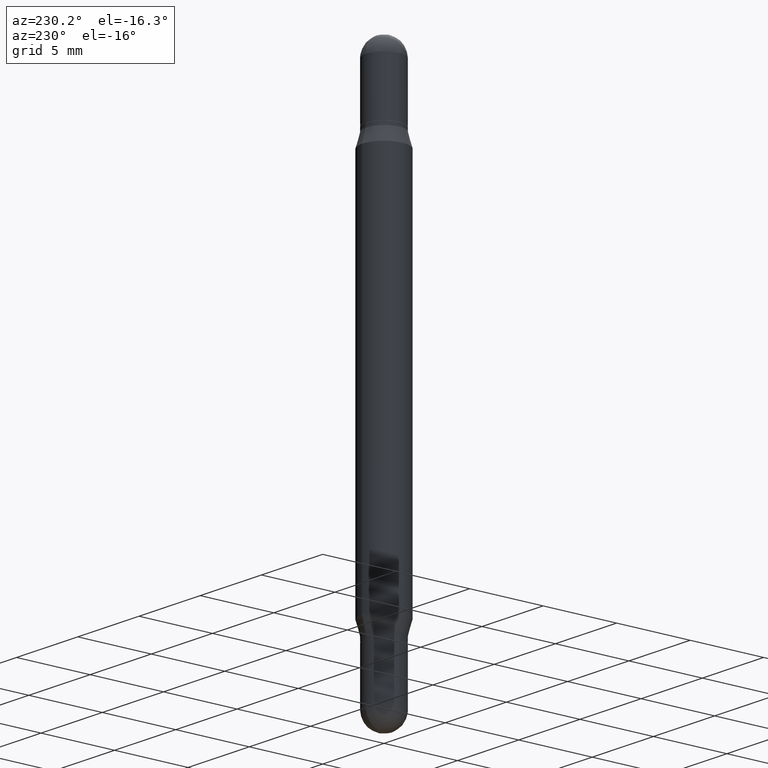
[diagram: clean part render]
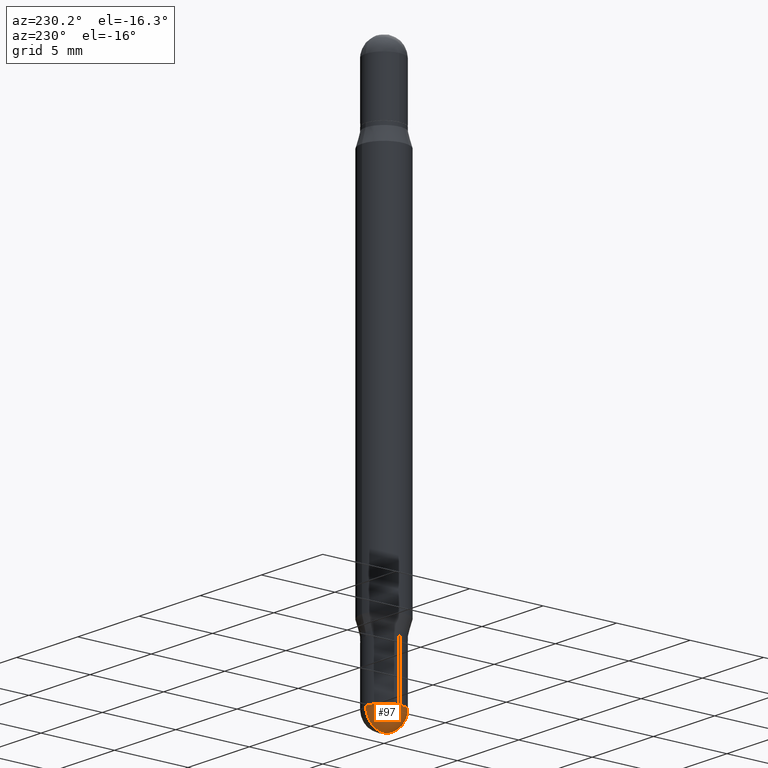
[diagram: same view with one face highlighted and labeled with its STEP entity id]
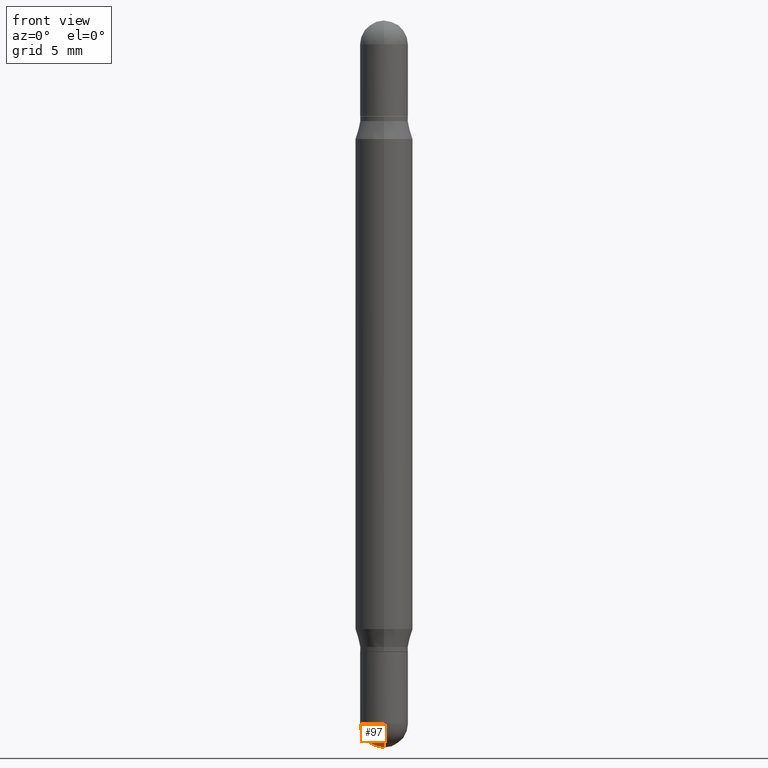
[diagram: same view with one face highlighted and labeled with its STEP entity id]
A machine part, auxiliary view. The second image highlights one B-rep face of the part: STEP entity #97.
A second angle (front view) of the same face is appended — the face is thin or edge-on in the first view.
In plain terms, the highlighted spherical surface has radius 1.2497 mm.
Its self-contained STEP definition (entity closure, byte-faithful):
#26 = DIRECTION ( 'NONE',  ( 1.000000000000000000, -6.982962677686265922E-15, 4.883557194083112340E-29 ) ) ;
#40 = EDGE_LOOP ( 'NONE', ( #675, #1010, #155, #760 ) ) ;
#63 = EDGE_CURVE ( 'NONE', #115, #646, #442, .T. ) ;
#85 = CARTESIAN_POINT ( 'NONE',  ( -0.04920000000000000068, -4.444391426304611227E-15, -1.446899999999999853 ) ) ;
#97 = ADVANCED_FACE ( 'NONE', ( #793 ), #490, .T. ) ;
#108 = AXIS2_PLACEMENT_3D ( 'NONE', #405, #26, #971 ) ;
#109 = AXIS2_PLACEMENT_3D ( 'NONE', #362, #1114, #776 ) ;
#115 = VERTEX_POINT ( 'NONE', #320 ) ;
#155 = ORIENTED_EDGE ( 'NONE', *, *, #1021, .F. ) ;
#229 = EDGE_CURVE ( 'NONE', #807, #115, #495, .T. ) ;
#267 = CARTESIAN_POINT ( 'NONE',  ( -3.435617637421291240E-16, -0.04920000000000508689, -1.446899999999999631 ) ) ;
#319 = EDGE_CURVE ( 'NONE', #807, #483, #1006, .T. ) ;
#320 = CARTESIAN_POINT ( 'NONE',  ( 3.495870259940048443E-16, 0.04919999999999498386, -1.446900000000000075 ) ) ;
#362 = CARTESIAN_POINT ( 'NONE',  ( 3.538348815669273817E-29, -5.051824349172146609E-15, -1.446899999999999853 ) ) ;
#387 = CARTESIAN_POINT ( 'NONE',  ( 3.652354753719438961E-29, -5.232643124420936646E-15, -1.496099999999999985 ) ) ;
#405 = CARTESIAN_POINT ( 'NONE',  ( 3.534141397526511158E-29, -5.057849611423951529E-15, -1.446899999999999853 ) ) ;
#439 = CARTESIAN_POINT ( 'NONE',  ( 3.534141397526511158E-29, -5.057849611423951529E-15, -1.446899999999999853 ) ) ;
#442 = CIRCLE ( 'NONE', #109, 0.04920000000000000068 ) ;
#483 = VERTEX_POINT ( 'NONE', #267 ) ;
#490 = SPHERICAL_SURFACE ( 'NONE', #108, 0.04920000000000007007 ) ;
#495 = CIRCLE ( 'NONE', #887, 0.04920000000000007007 ) ;
#517 = DIRECTION ( 'NONE',  ( -6.982962677686265922E-15, -1.000000000000000000, 0.000000000000000000 ) ) ;
#600 = CARTESIAN_POINT ( 'NONE',  ( 3.534141397526511158E-29, -5.057849611423951529E-15, -1.446899999999999853 ) ) ;
#608 = CARTESIAN_POINT ( 'NONE',  ( 3.538348815669273817E-29, -5.051824349172146609E-15, -1.446899999999999853 ) ) ;
#646 = VERTEX_POINT ( 'NONE', #85 ) ;
#675 = ORIENTED_EDGE ( 'NONE', *, *, #229, .F. ) ;
#760 = ORIENTED_EDGE ( 'NONE', *, *, #63, .F. ) ;
#776 = DIRECTION ( 'NONE',  ( 1.000000000000000000, -6.982962677686261977E-15, 0.000000000000000000 ) ) ;
#793 = FACE_OUTER_BOUND ( 'NONE', #40, .T. ) ;
#798 = AXIS2_PLACEMENT_3D ( 'NONE', #608, #951, #1048 ) ;
#807 = VERTEX_POINT ( 'NONE', #387 ) ;
#887 = AXIS2_PLACEMENT_3D ( 'NONE', #600, #1018, #1002 ) ;
#891 = CIRCLE ( 'NONE', #798, 0.04920000000000000068 ) ;
#903 = AXIS2_PLACEMENT_3D ( 'NONE', #439, #928, #517 ) ;
#928 = DIRECTION ( 'NONE',  ( -1.000000000000000000, 6.982962677686265922E-15, -4.883557194083112340E-29 ) ) ;
#951 = DIRECTION ( 'NONE',  ( -2.445468806185136597E-29, 3.491481338843145583E-15, 1.000000000000000000 ) ) ;
#971 = DIRECTION ( 'NONE',  ( -6.982962677686265922E-15, -1.000000000000000000, 5.552536572488332275E-15 ) ) ;
#1002 = DIRECTION ( 'NONE',  ( 7.105427357601001070E-15, 1.000000000000000000, 0.000000000000000000 ) ) ;
#1006 = CIRCLE ( 'NONE', #903, 0.04920000000000007007 ) ;
#1010 = ORIENTED_EDGE ( 'NONE', *, *, #319, .T. ) ;
#1018 = DIRECTION ( 'NONE',  ( 1.000000000000000000, -7.105427357601001070E-15, 4.926315508542082329E-29 ) ) ;
#1021 = EDGE_CURVE ( 'NONE', #646, #483, #891, .T. ) ;
#1048 = DIRECTION ( 'NONE',  ( 1.000000000000000000, -6.982962677686261977E-15, 0.000000000000000000 ) ) ;
#1114 = DIRECTION ( 'NONE',  ( -2.445468806185136597E-29, 3.491481338843145583E-15, 1.000000000000000000 ) ) ;